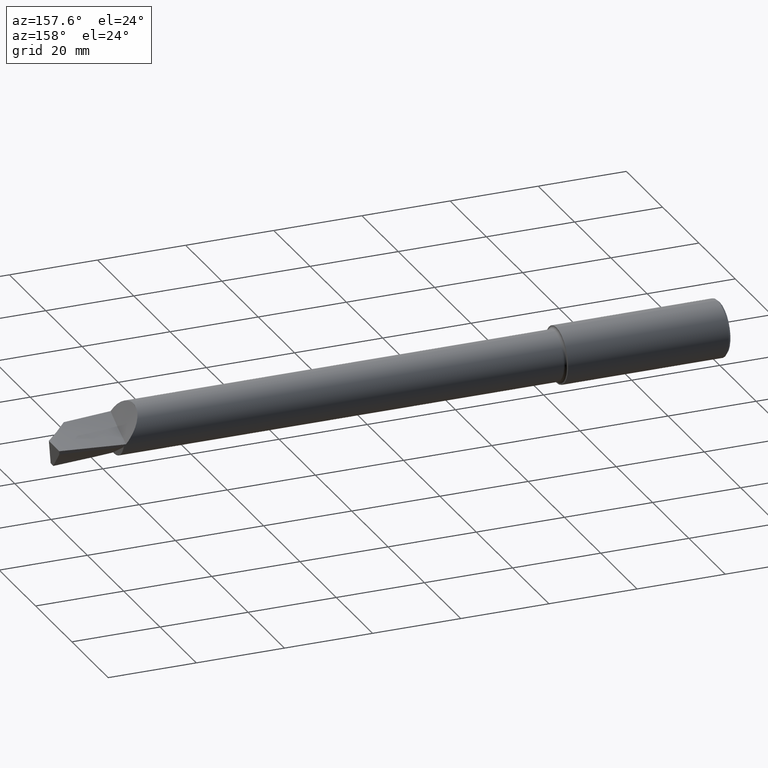
[diagram: clean part render]
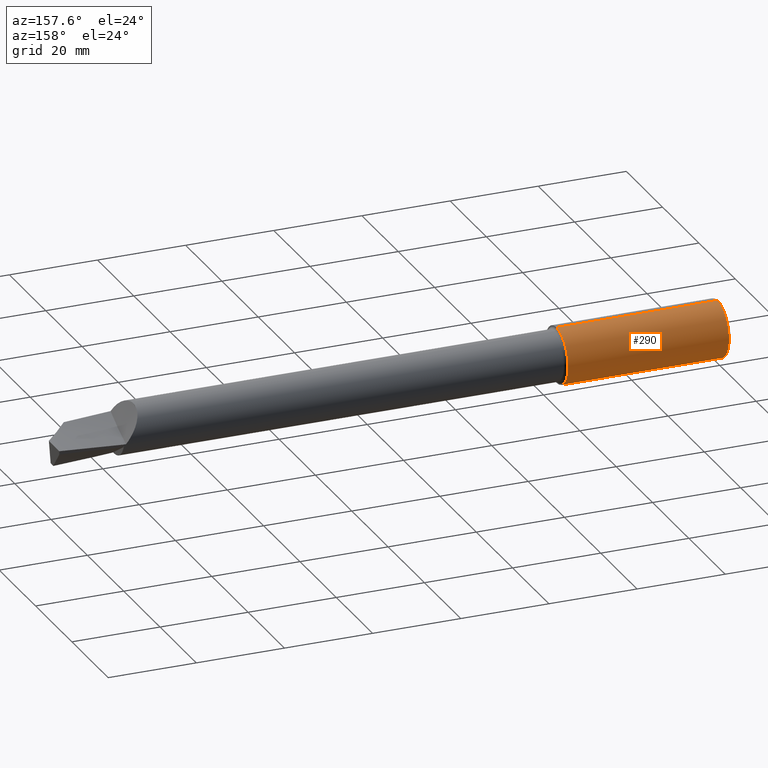
[diagram: same view with one face highlighted and labeled with its STEP entity id]
A machine part, auxiliary view. The second image highlights one B-rep face of the part: STEP entity #290.
In plain terms, the highlighted cylindrical surface (edge-blend (fillet) strip) has radius 6.3462 mm, axis along (-1, -0, -0).
Its self-contained STEP definition (entity closure, byte-faithful):
#20 = CARTESIAN_POINT ( 'NONE',  ( 1.459525038226270333, 0.000000000000000000, 0.000000000000000000 ) ) ;
#32 = DIRECTION ( 'NONE',  ( -1.000000000000000000, -0.000000000000000000, -0.000000000000000000 ) ) ;
#37 = ORIENTED_EDGE ( 'NONE', *, *, #632, .T. ) ;
#41 = DIRECTION ( 'NONE',  ( 0.000000000000000000, 0.000000000000000000, -1.000000000000000000 ) ) ;
#56 = VECTOR ( 'NONE', #131, 39.37007874015748143 ) ;
#76 = DIRECTION ( 'NONE',  ( -1.000000000000000000, -0.000000000000000000, -0.000000000000000000 ) ) ;
#91 = CARTESIAN_POINT ( 'NONE',  ( 0.02000000000000000042, 0.000000000000000000, 0.000000000000000000 ) ) ;
#93 = CIRCLE ( 'NONE', #565, 0.2498499999999999888 ) ;
#101 = CYLINDRICAL_SURFACE ( 'NONE', #117, 0.2498499999999999888 ) ;
#102 = CARTESIAN_POINT ( 'NONE',  ( 1.459525038226270333, 0.000000000000000000, 0.2498499999999999888 ) ) ;
#108 = CARTESIAN_POINT ( 'NONE',  ( 1.459525038226270333, 3.059780027669661931E-17, -0.2498499999999999888 ) ) ;
#114 = ORIENTED_EDGE ( 'NONE', *, *, #124, .F. ) ;
#117 = AXIS2_PLACEMENT_3D ( 'NONE', #153, #32, #503 ) ;
#124 = EDGE_CURVE ( 'NONE', #705, #391, #148, .T. ) ;
#131 = DIRECTION ( 'NONE',  ( -1.000000000000000000, -0.000000000000000000, -0.000000000000000000 ) ) ;
#136 = CIRCLE ( 'NONE', #580, 0.2498499999999999888 ) ;
#147 = LINE ( 'NONE', #441, #56 ) ;
#148 = LINE ( 'NONE', #620, #213 ) ;
#151 = ORIENTED_EDGE ( 'NONE', *, *, #406, .F. ) ;
#153 = CARTESIAN_POINT ( 'NONE',  ( 0.000000000000000000, 0.000000000000000000, 0.000000000000000000 ) ) ;
#213 = VECTOR ( 'NONE', #499, 39.37007874015748143 ) ;
#276 = FACE_OUTER_BOUND ( 'NONE', #502, .T. ) ;
#290 = ADVANCED_FACE ( 'NONE', ( #276 ), #101, .T. ) ;
#297 = VERTEX_POINT ( 'NONE', #578 ) ;
#391 = VERTEX_POINT ( 'NONE', #600 ) ;
#406 = EDGE_CURVE ( 'NONE', #529, #705, #136, .T. ) ;
#436 = DIRECTION ( 'NONE',  ( 0.000000000000000000, 0.000000000000000000, 1.000000000000000000 ) ) ;
#441 = CARTESIAN_POINT ( 'NONE',  ( 0.000000000000000000, 3.059780027669661931E-17, -0.2498499999999999888 ) ) ;
#499 = DIRECTION ( 'NONE',  ( -1.000000000000000000, -0.000000000000000000, -0.000000000000000000 ) ) ;
#502 = EDGE_LOOP ( 'NONE', ( #151, #37, #597, #114 ) ) ;
#503 = DIRECTION ( 'NONE',  ( 0.000000000000000000, 0.000000000000000000, 1.000000000000000000 ) ) ;
#529 = VERTEX_POINT ( 'NONE', #108 ) ;
#565 = AXIS2_PLACEMENT_3D ( 'NONE', #91, #76, #436 ) ;
#578 = CARTESIAN_POINT ( 'NONE',  ( 0.02000000000000000042, 3.059780027669661931E-17, -0.2498499999999999888 ) ) ;
#580 = AXIS2_PLACEMENT_3D ( 'NONE', #20, #737, #41 ) ;
#589 = EDGE_CURVE ( 'NONE', #391, #297, #93, .T. ) ;
#597 = ORIENTED_EDGE ( 'NONE', *, *, #589, .F. ) ;
#600 = CARTESIAN_POINT ( 'NONE',  ( 0.02000000000000000042, 0.000000000000000000, 0.2498499999999999888 ) ) ;
#620 = CARTESIAN_POINT ( 'NONE',  ( 0.000000000000000000, 0.000000000000000000, 0.2498499999999999888 ) ) ;
#632 = EDGE_CURVE ( 'NONE', #529, #297, #147, .T. ) ;
#705 = VERTEX_POINT ( 'NONE', #102 ) ;
#737 = DIRECTION ( 'NONE',  ( 1.000000000000000000, 0.000000000000000000, 0.000000000000000000 ) ) ;